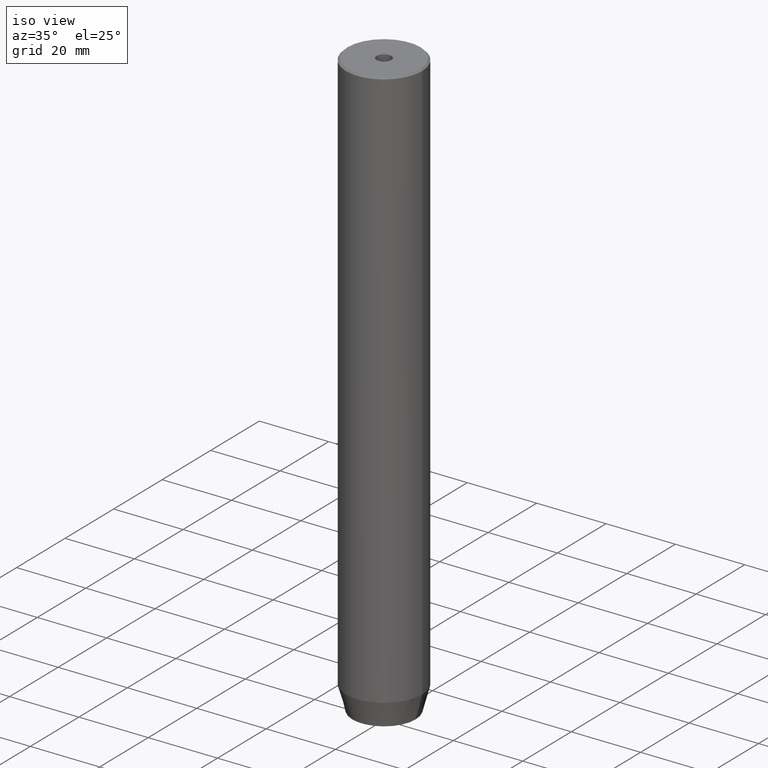
[diagram: clean part render]
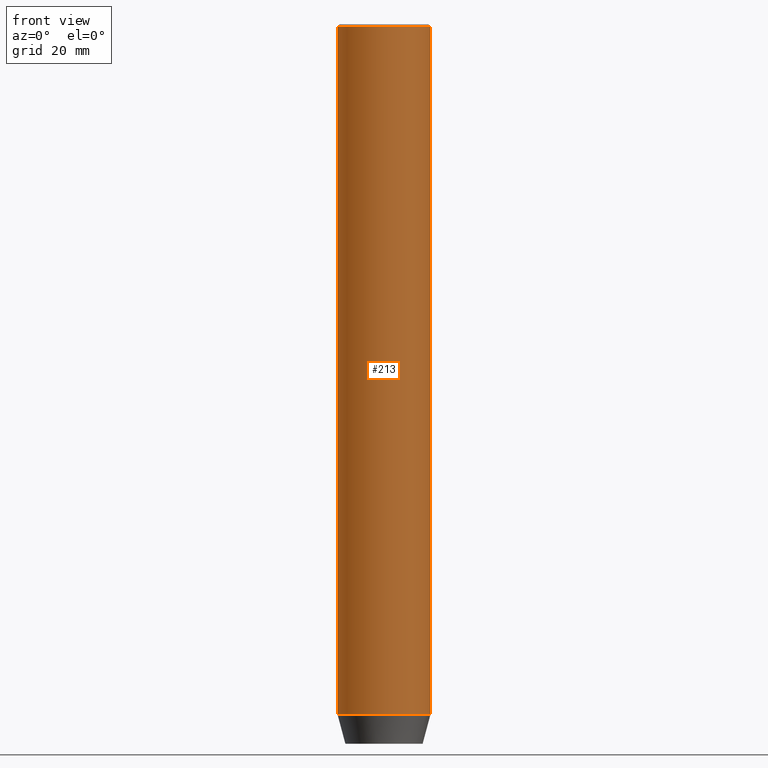
[diagram: tour spotlight — one face highlighted and labeled with its STEP entity id]
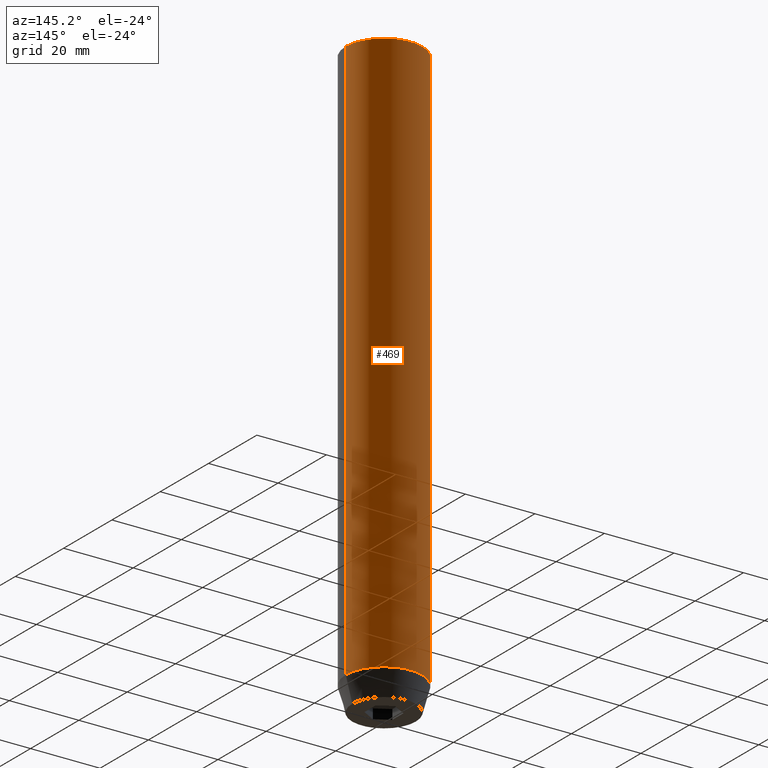
[diagram: tour spotlight — one face highlighted and labeled with its STEP entity id]
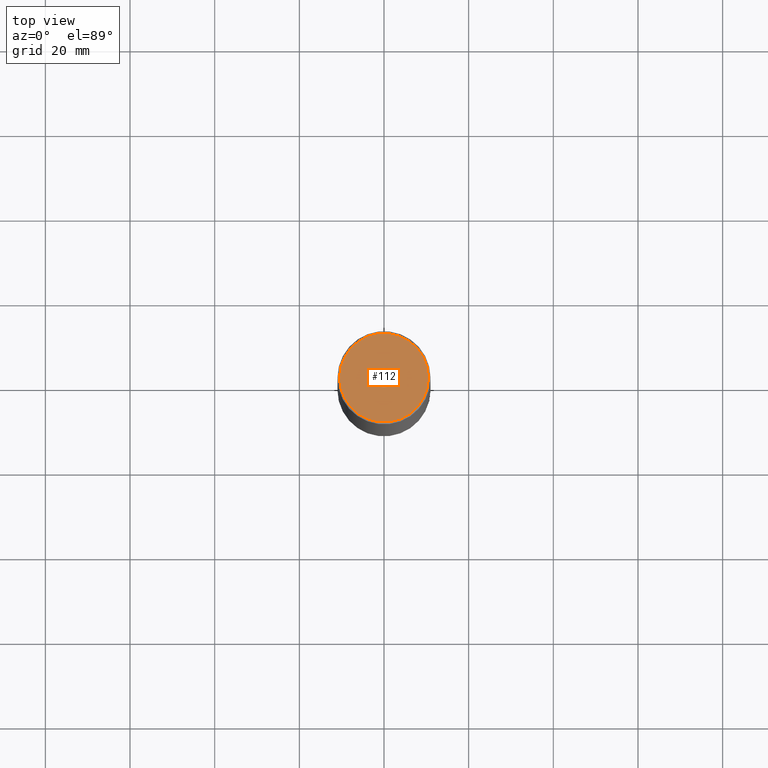
[diagram: tour spotlight — one face highlighted and labeled with its STEP entity id]
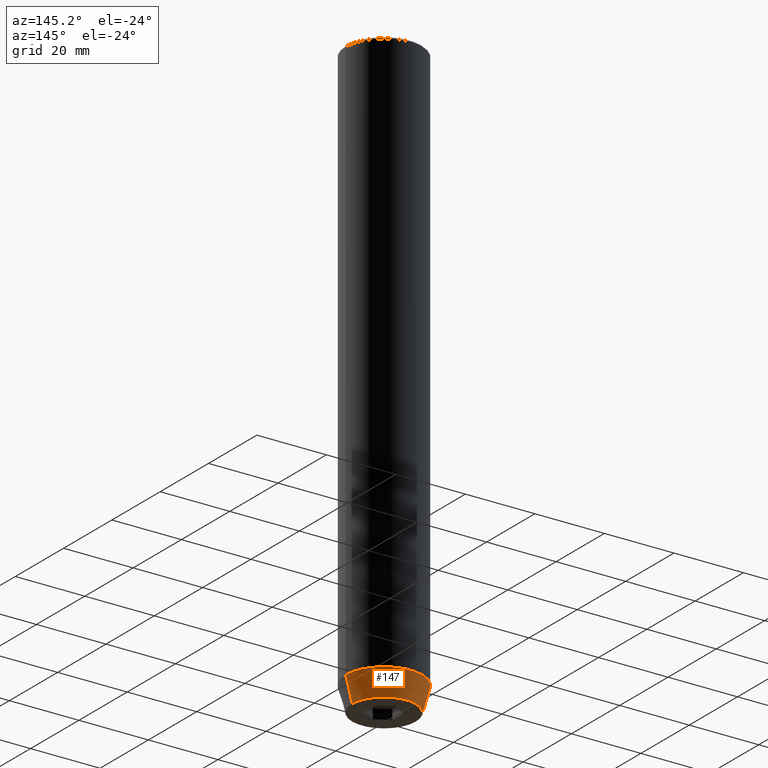
[diagram: tour spotlight — one face highlighted and labeled with its STEP entity id]
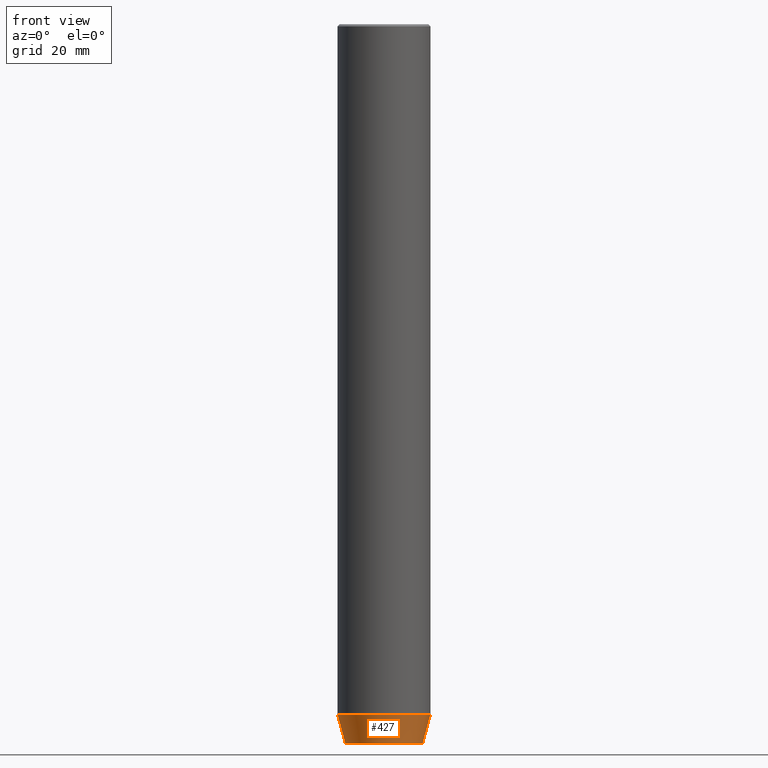
[diagram: tour spotlight — one face highlighted and labeled with its STEP entity id]
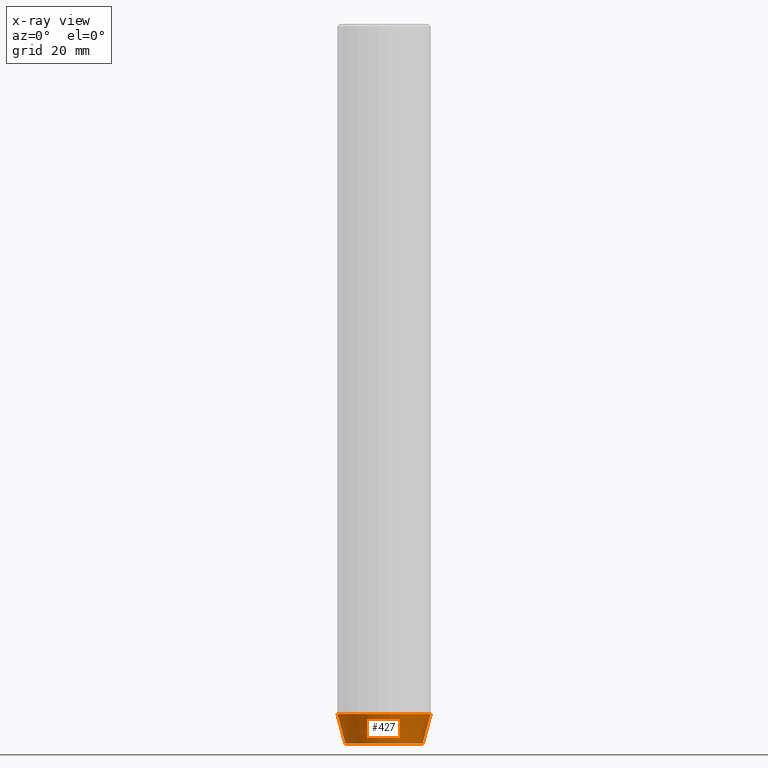
[diagram: x-ray of the same camera — body ghosted, this tour face saturated]
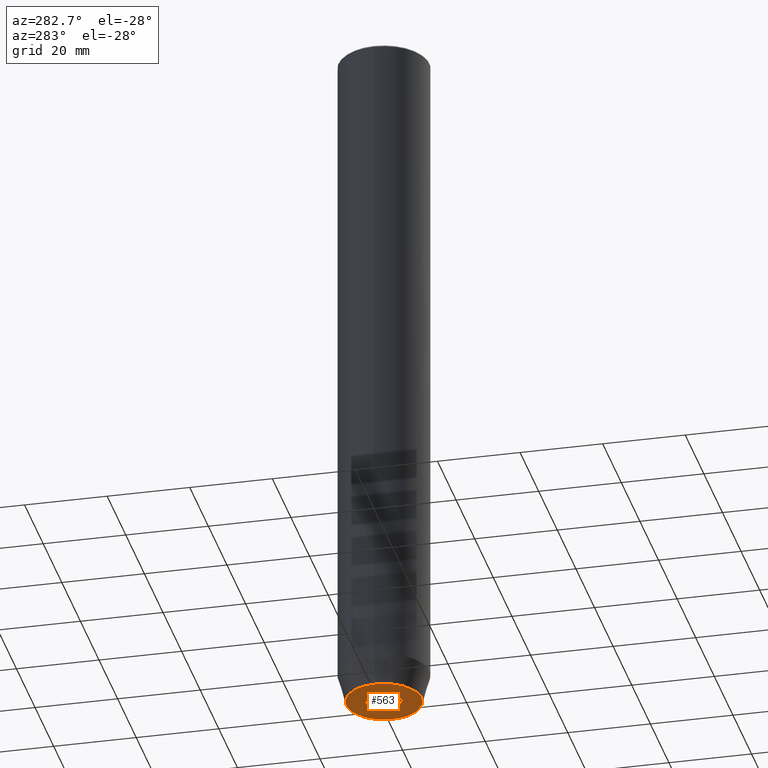
[diagram: tour spotlight — one face highlighted and labeled with its STEP entity id]
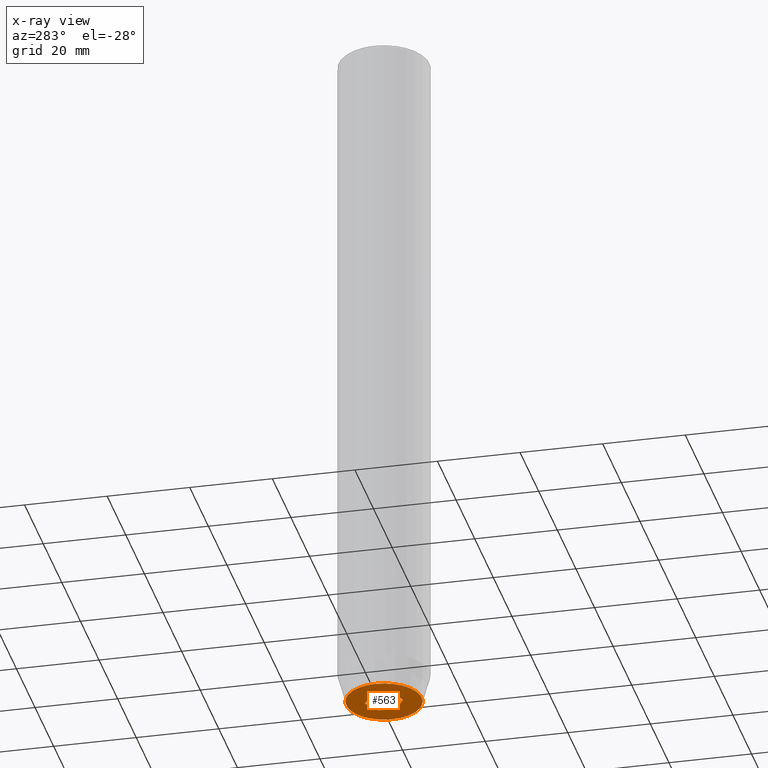
[diagram: x-ray of the same camera — body ghosted, this tour face saturated]
A machine part: a face-by-face anatomy tour. The part has 19 B-rep faces; the first image is the clean iso view, then the 6 largest visible faces are spotlighted one at a time (largest first), each with its STEP entity span.

Face 1 — front view, entity #213. In plain terms, the highlighted cylindrical surface (partial cylindrical patch) has radius 11 mm, axis along (-0, -0, 1).
Definition (entity closure, byte-faithful):
#39 = DIRECTION ( 'NONE',  ( 1.000000000000000000, 0.000000000000000000, 0.000000000000000000 ) ) ;
#41 = VERTEX_POINT ( 'NONE', #247 ) ;
#60 = EDGE_CURVE ( 'NONE', #158, #190, #203, .T. ) ;
#64 = DIRECTION ( 'NONE',  ( -0.000000000000000000, -0.000000000000000000, 1.000000000000000000 ) ) ;
#67 = VECTOR ( 'NONE', #64, 1000.000000000000000 ) ;
#80 = DIRECTION ( 'NONE',  ( -0.000000000000000000, -0.000000000000000000, 1.000000000000000000 ) ) ;
#130 = CARTESIAN_POINT ( 'NONE',  ( 0.000000000000000000, 0.000000000000000000, -0.4999999999999726885 ) ) ;
#150 = CIRCLE ( 'NONE', #202, 11.00000000000000000 ) ;
#153 = ORIENTED_EDGE ( 'NONE', *, *, #529, .F. ) ;
#158 = VERTEX_POINT ( 'NONE', #301 ) ;
#165 = CARTESIAN_POINT ( 'NONE',  ( 11.00000000000000000, 0.000000000000000000, -0.4999999999999726885 ) ) ;
#173 = DIRECTION ( 'NONE',  ( 1.000000000000000000, 0.000000000000000000, 0.000000000000000000 ) ) ;
#182 = CARTESIAN_POINT ( 'NONE',  ( -11.00000000000000000, 1.347111479062088405E-15, 0.000000000000000000 ) ) ;
#189 = CARTESIAN_POINT ( 'NONE',  ( -11.00000000000000000, 1.347111479062088405E-15, -162.9999999999999716 ) ) ;
#190 = VERTEX_POINT ( 'NONE', #165 ) ;
#193 = ORIENTED_EDGE ( 'NONE', *, *, #60, .T. ) ;
#201 = EDGE_CURVE ( 'NONE', #487, #158, #150, .T. ) ;
#202 = AXIS2_PLACEMENT_3D ( 'NONE', #523, #399, #357 ) ;
#203 = LINE ( 'NONE', #388, #67 ) ;
#212 = AXIS2_PLACEMENT_3D ( 'NONE', #130, #496, #39 ) ;
#213 = ADVANCED_FACE ( 'NONE', ( #364 ), #309, .T. ) ;
#247 = CARTESIAN_POINT ( 'NONE',  ( -11.00000000000000000, 1.347111479062088405E-15, -0.4999999999999726885 ) ) ;
#259 = AXIS2_PLACEMENT_3D ( 'NONE', #313, #80, #173 ) ;
#287 = ORIENTED_EDGE ( 'NONE', *, *, #201, .T. ) ;
#301 = CARTESIAN_POINT ( 'NONE',  ( 11.00000000000000000, 0.000000000000000000, -162.9999999999999716 ) ) ;
#309 = CYLINDRICAL_SURFACE ( 'NONE', #259, 11.00000000000000000 ) ;
#313 = CARTESIAN_POINT ( 'NONE',  ( 0.000000000000000000, 0.000000000000000000, 0.000000000000000000 ) ) ;
#342 = EDGE_LOOP ( 'NONE', ( #153, #287, #193, #576 ) ) ;
#348 = VECTOR ( 'NONE', #462, 1000.000000000000000 ) ;
#357 = DIRECTION ( 'NONE',  ( 1.000000000000000000, 0.000000000000000000, 0.000000000000000000 ) ) ;
#364 = FACE_OUTER_BOUND ( 'NONE', #342, .T. ) ;
#388 = CARTESIAN_POINT ( 'NONE',  ( 11.00000000000000000, 0.000000000000000000, 0.000000000000000000 ) ) ;
#399 = DIRECTION ( 'NONE',  ( -0.000000000000000000, -0.000000000000000000, 1.000000000000000000 ) ) ;
#406 = CIRCLE ( 'NONE', #212, 11.00000000000000000 ) ;
#420 = EDGE_CURVE ( 'NONE', #190, #41, #406, .T. ) ;
#462 = DIRECTION ( 'NONE',  ( -0.000000000000000000, -0.000000000000000000, 1.000000000000000000 ) ) ;
#487 = VERTEX_POINT ( 'NONE', #189 ) ;
#496 = DIRECTION ( 'NONE',  ( 0.000000000000000000, 0.000000000000000000, -1.000000000000000000 ) ) ;
#509 = LINE ( 'NONE', #182, #348 ) ;
#523 = CARTESIAN_POINT ( 'NONE',  ( 0.000000000000000000, 0.000000000000000000, -162.9999999999999716 ) ) ;
#529 = EDGE_CURVE ( 'NONE', #487, #41, #509, .T. ) ;
#576 = ORIENTED_EDGE ( 'NONE', *, *, #420, .T. ) ;

Face 2 — auxiliary view, entity #469. In plain terms, the highlighted cylindrical surface (partial cylindrical patch) has radius 11 mm, axis along (-0, -0, 1).
Definition (entity closure, byte-faithful):
#6 = CIRCLE ( 'NONE', #297, 11.00000000000000000 ) ;
#8 = DIRECTION ( 'NONE',  ( -0.000000000000000000, -0.000000000000000000, 1.000000000000000000 ) ) ;
#34 = ORIENTED_EDGE ( 'NONE', *, *, #409, .T. ) ;
#37 = ORIENTED_EDGE ( 'NONE', *, *, #60, .F. ) ;
#41 = VERTEX_POINT ( 'NONE', #247 ) ;
#60 = EDGE_CURVE ( 'NONE', #158, #190, #203, .T. ) ;
#62 = EDGE_LOOP ( 'NONE', ( #34, #432, #475, #37 ) ) ;
#64 = DIRECTION ( 'NONE',  ( -0.000000000000000000, -0.000000000000000000, 1.000000000000000000 ) ) ;
#67 = VECTOR ( 'NONE', #64, 1000.000000000000000 ) ;
#82 = DIRECTION ( 'NONE',  ( 1.000000000000000000, 0.000000000000000000, 0.000000000000000000 ) ) ;
#119 = DIRECTION ( 'NONE',  ( 1.000000000000000000, 0.000000000000000000, 0.000000000000000000 ) ) ;
#158 = VERTEX_POINT ( 'NONE', #301 ) ;
#165 = CARTESIAN_POINT ( 'NONE',  ( 11.00000000000000000, 0.000000000000000000, -0.4999999999999726885 ) ) ;
#170 = DIRECTION ( 'NONE',  ( 0.000000000000000000, 0.000000000000000000, -1.000000000000000000 ) ) ;
#182 = CARTESIAN_POINT ( 'NONE',  ( -11.00000000000000000, 1.347111479062088405E-15, 0.000000000000000000 ) ) ;
#189 = CARTESIAN_POINT ( 'NONE',  ( -11.00000000000000000, 1.347111479062088405E-15, -162.9999999999999716 ) ) ;
#190 = VERTEX_POINT ( 'NONE', #165 ) ;
#203 = LINE ( 'NONE', #388, #67 ) ;
#219 = CARTESIAN_POINT ( 'NONE',  ( 0.000000000000000000, 0.000000000000000000, -162.9999999999999716 ) ) ;
#234 = CYLINDRICAL_SURFACE ( 'NONE', #481, 11.00000000000000000 ) ;
#244 = CARTESIAN_POINT ( 'NONE',  ( 0.000000000000000000, 0.000000000000000000, -0.4999999999999726885 ) ) ;
#247 = CARTESIAN_POINT ( 'NONE',  ( -11.00000000000000000, 1.347111479062088405E-15, -0.4999999999999726885 ) ) ;
#255 = EDGE_CURVE ( 'NONE', #41, #190, #466, .T. ) ;
#297 = AXIS2_PLACEMENT_3D ( 'NONE', #219, #344, #119 ) ;
#301 = CARTESIAN_POINT ( 'NONE',  ( 11.00000000000000000, 0.000000000000000000, -162.9999999999999716 ) ) ;
#305 = AXIS2_PLACEMENT_3D ( 'NONE', #244, #170, #82 ) ;
#344 = DIRECTION ( 'NONE',  ( -0.000000000000000000, -0.000000000000000000, 1.000000000000000000 ) ) ;
#348 = VECTOR ( 'NONE', #462, 1000.000000000000000 ) ;
#361 = FACE_OUTER_BOUND ( 'NONE', #62, .T. ) ;
#388 = CARTESIAN_POINT ( 'NONE',  ( 11.00000000000000000, 0.000000000000000000, 0.000000000000000000 ) ) ;
#409 = EDGE_CURVE ( 'NONE', #158, #487, #6, .T. ) ;
#432 = ORIENTED_EDGE ( 'NONE', *, *, #529, .T. ) ;
#462 = DIRECTION ( 'NONE',  ( -0.000000000000000000, -0.000000000000000000, 1.000000000000000000 ) ) ;
#466 = CIRCLE ( 'NONE', #305, 11.00000000000000000 ) ;
#469 = ADVANCED_FACE ( 'NONE', ( #361 ), #234, .T. ) ;
#475 = ORIENTED_EDGE ( 'NONE', *, *, #255, .T. ) ;
#481 = AXIS2_PLACEMENT_3D ( 'NONE', #585, #8, #548 ) ;
#487 = VERTEX_POINT ( 'NONE', #189 ) ;
#509 = LINE ( 'NONE', #182, #348 ) ;
#529 = EDGE_CURVE ( 'NONE', #487, #41, #509, .T. ) ;
#548 = DIRECTION ( 'NONE',  ( 1.000000000000000000, 0.000000000000000000, 0.000000000000000000 ) ) ;
#585 = CARTESIAN_POINT ( 'NONE',  ( 0.000000000000000000, 0.000000000000000000, 0.000000000000000000 ) ) ;

Face 3 — top view, entity #112. In plain terms, the highlighted planar face has unit normal (0, -0, 1).
Definition (entity closure, byte-faithful):
#30 = CARTESIAN_POINT ( 'NONE',  ( 2.099999999999998757, 0.000000000000000000, -1.990051048614449116E-16 ) ) ;
#51 = CIRCLE ( 'NONE', #192, 2.099999999999998757 ) ;
#57 = CARTESIAN_POINT ( 'NONE',  ( 0.000000000000000000, 0.000000000000000000, 0.000000000000000000 ) ) ;
#93 = VERTEX_POINT ( 'NONE', #159 ) ;
#103 = DIRECTION ( 'NONE',  ( 0.000000000000000000, -0.000000000000000000, 1.000000000000000000 ) ) ;
#105 = CIRCLE ( 'NONE', #447, 2.099999999999998757 ) ;
#109 = DIRECTION ( 'NONE',  ( -0.000000000000000000, -0.000000000000000000, 1.000000000000000000 ) ) ;
#112 = ADVANCED_FACE ( 'NONE', ( #302, #477 ), #518, .T. ) ;
#123 = CARTESIAN_POINT ( 'NONE',  ( 10.50000000000005151, 1.316495309083407773E-15, 0.000000000000000000 ) ) ;
#139 = DIRECTION ( 'NONE',  ( -0.000000000000000000, -0.000000000000000000, 1.000000000000000000 ) ) ;
#141 = CIRCLE ( 'NONE', #536, 10.50000000000005151 ) ;
#146 = CARTESIAN_POINT ( 'NONE',  ( -10.50000000000005151, 0.000000000000000000, 0.000000000000000000 ) ) ;
#149 = DIRECTION ( 'NONE',  ( 1.000000000000000000, 0.000000000000000000, 0.000000000000000000 ) ) ;
#152 = CIRCLE ( 'NONE', #227, 10.50000000000005151 ) ;
#159 = CARTESIAN_POINT ( 'NONE',  ( -2.099999999999998757, 2.571758278209440478E-16, -1.990051048614449116E-16 ) ) ;
#167 = CARTESIAN_POINT ( 'NONE',  ( 0.000000000000000000, 0.000000000000000000, -1.990051048614449116E-16 ) ) ;
#172 = DIRECTION ( 'NONE',  ( 1.000000000000000000, 0.000000000000000000, 0.000000000000000000 ) ) ;
#176 = EDGE_LOOP ( 'NONE', ( #393, #350 ) ) ;
#192 = AXIS2_PLACEMENT_3D ( 'NONE', #336, #109, #263 ) ;
#195 = EDGE_CURVE ( 'NONE', #93, #577, #51, .T. ) ;
#215 = DIRECTION ( 'NONE',  ( -0.000000000000000000, -0.000000000000000000, 1.000000000000000000 ) ) ;
#224 = VERTEX_POINT ( 'NONE', #123 ) ;
#227 = AXIS2_PLACEMENT_3D ( 'NONE', #369, #452, #324 ) ;
#233 = VERTEX_POINT ( 'NONE', #146 ) ;
#239 = ORIENTED_EDGE ( 'NONE', *, *, #195, .F. ) ;
#263 = DIRECTION ( 'NONE',  ( 1.000000000000000000, 0.000000000000000000, 0.000000000000000000 ) ) ;
#273 = EDGE_CURVE ( 'NONE', #577, #93, #105, .T. ) ;
#302 = FACE_BOUND ( 'NONE', #492, .T. ) ;
#324 = DIRECTION ( 'NONE',  ( 1.000000000000000000, 0.000000000000000000, 0.000000000000000000 ) ) ;
#336 = CARTESIAN_POINT ( 'NONE',  ( 0.000000000000000000, 0.000000000000000000, -1.990051048614449116E-16 ) ) ;
#350 = ORIENTED_EDGE ( 'NONE', *, *, #557, .T. ) ;
#369 = CARTESIAN_POINT ( 'NONE',  ( 0.000000000000000000, 0.000000000000000000, 0.000000000000000000 ) ) ;
#381 = DIRECTION ( 'NONE',  ( 1.000000000000000000, 0.000000000000000000, 0.000000000000000000 ) ) ;
#393 = ORIENTED_EDGE ( 'NONE', *, *, #519, .T. ) ;
#421 = CARTESIAN_POINT ( 'NONE',  ( 0.000000000000000000, 0.000000000000000000, 0.000000000000000000 ) ) ;
#447 = AXIS2_PLACEMENT_3D ( 'NONE', #167, #215, #172 ) ;
#452 = DIRECTION ( 'NONE',  ( -0.000000000000000000, -0.000000000000000000, 1.000000000000000000 ) ) ;
#477 = FACE_OUTER_BOUND ( 'NONE', #176, .T. ) ;
#492 = EDGE_LOOP ( 'NONE', ( #505, #239 ) ) ;
#505 = ORIENTED_EDGE ( 'NONE', *, *, #273, .F. ) ;
#517 = AXIS2_PLACEMENT_3D ( 'NONE', #57, #103, #381 ) ;
#518 = PLANE ( 'NONE',  #517 ) ;
#519 = EDGE_CURVE ( 'NONE', #233, #224, #152, .T. ) ;
#536 = AXIS2_PLACEMENT_3D ( 'NONE', #421, #139, #149 ) ;
#557 = EDGE_CURVE ( 'NONE', #224, #233, #141, .T. ) ;
#577 = VERTEX_POINT ( 'NONE', #30 ) ;

Face 4 — auxiliary view, entity #147. In plain terms, the highlighted conical surface has half-angle 15 deg.
Definition (entity closure, byte-faithful):
#6 = CIRCLE ( 'NONE', #297, 11.00000000000000000 ) ;
#52 = EDGE_CURVE ( 'NONE', #410, #487, #332, .T. ) ;
#73 = CARTESIAN_POINT ( 'NONE',  ( -9.124355652982126585, 1.232261386766375113E-15, -170.0000000000000000 ) ) ;
#99 = ORIENTED_EDGE ( 'NONE', *, *, #320, .F. ) ;
#116 = CARTESIAN_POINT ( 'NONE',  ( 11.00000000000000000, 0.000000000000000000, -162.9999999999999716 ) ) ;
#119 = DIRECTION ( 'NONE',  ( 1.000000000000000000, 0.000000000000000000, 0.000000000000000000 ) ) ;
#147 = ADVANCED_FACE ( 'NONE', ( #257 ), #574, .T. ) ;
#158 = VERTEX_POINT ( 'NONE', #301 ) ;
#189 = CARTESIAN_POINT ( 'NONE',  ( -11.00000000000000000, 1.347111479062088405E-15, -162.9999999999999716 ) ) ;
#219 = CARTESIAN_POINT ( 'NONE',  ( 0.000000000000000000, 0.000000000000000000, -162.9999999999999716 ) ) ;
#256 = CARTESIAN_POINT ( 'NONE',  ( 0.000000000000000000, 0.000000000000000000, -170.0000000000000000 ) ) ;
#257 = FACE_OUTER_BOUND ( 'NONE', #545, .T. ) ;
#261 = CARTESIAN_POINT ( 'NONE',  ( 9.124355652982126585, 0.000000000000000000, -170.0000000000000000 ) ) ;
#272 = AXIS2_PLACEMENT_3D ( 'NONE', #474, #386, #339 ) ;
#274 = ORIENTED_EDGE ( 'NONE', *, *, #409, .F. ) ;
#297 = AXIS2_PLACEMENT_3D ( 'NONE', #219, #344, #119 ) ;
#301 = CARTESIAN_POINT ( 'NONE',  ( 11.00000000000000000, 0.000000000000000000, -162.9999999999999716 ) ) ;
#312 = VERTEX_POINT ( 'NONE', #261 ) ;
#320 = EDGE_CURVE ( 'NONE', #312, #158, #533, .T. ) ;
#332 = LINE ( 'NONE', #423, #395 ) ;
#339 = DIRECTION ( 'NONE',  ( 1.000000000000000000, 0.000000000000000000, 0.000000000000000000 ) ) ;
#344 = DIRECTION ( 'NONE',  ( -0.000000000000000000, -0.000000000000000000, 1.000000000000000000 ) ) ;
#345 = EDGE_CURVE ( 'NONE', #312, #410, #435, .T. ) ;
#367 = ORIENTED_EDGE ( 'NONE', *, *, #52, .T. ) ;
#386 = DIRECTION ( 'NONE',  ( -0.000000000000000000, -0.000000000000000000, 1.000000000000000000 ) ) ;
#395 = VECTOR ( 'NONE', #572, 1000.000000000000114 ) ;
#404 = AXIS2_PLACEMENT_3D ( 'NONE', #256, #484, #440 ) ;
#409 = EDGE_CURVE ( 'NONE', #158, #487, #6, .T. ) ;
#410 = VERTEX_POINT ( 'NONE', #73 ) ;
#423 = CARTESIAN_POINT ( 'NONE',  ( -11.00000000000000000, 1.347111479062088405E-15, -162.9999999999999716 ) ) ;
#425 = VECTOR ( 'NONE', #442, 1000.000000000000114 ) ;
#435 = CIRCLE ( 'NONE', #404, 9.124355652982126585 ) ;
#440 = DIRECTION ( 'NONE',  ( 1.000000000000000000, 0.000000000000000000, 0.000000000000000000 ) ) ;
#442 = DIRECTION ( 'NONE',  ( 0.2588190451025212391, 0.000000000000000000, 0.9659258262890680902 ) ) ;
#459 = ORIENTED_EDGE ( 'NONE', *, *, #345, .T. ) ;
#474 = CARTESIAN_POINT ( 'NONE',  ( 0.000000000000000000, 0.000000000000000000, -162.9999999999999716 ) ) ;
#484 = DIRECTION ( 'NONE',  ( -0.000000000000000000, -0.000000000000000000, 1.000000000000000000 ) ) ;
#487 = VERTEX_POINT ( 'NONE', #189 ) ;
#533 = LINE ( 'NONE', #116, #425 ) ;
#545 = EDGE_LOOP ( 'NONE', ( #459, #367, #274, #99 ) ) ;
#572 = DIRECTION ( 'NONE',  ( -0.2588190451025212391, 3.169619151431771721E-17, 0.9659258262890680902 ) ) ;
#574 = CONICAL_SURFACE ( 'NONE', #272, 11.00000000000000000, 0.2617993877991499629 ) ;

Face 5 — front view, entity #427. An x-ray twin of the same camera follows (body ghosted, this face saturated) — the face is partly hidden behind the body. In plain terms, the highlighted conical surface has half-angle 15 deg.
Definition (entity closure, byte-faithful):
#26 = EDGE_CURVE ( 'NONE', #410, #312, #69, .T. ) ;
#52 = EDGE_CURVE ( 'NONE', #410, #487, #332, .T. ) ;
#69 = CIRCLE ( 'NONE', #443, 9.124355652982126585 ) ;
#73 = CARTESIAN_POINT ( 'NONE',  ( -9.124355652982126585, 1.232261386766375113E-15, -170.0000000000000000 ) ) ;
#76 = CONICAL_SURFACE ( 'NONE', #371, 11.00000000000000000, 0.2617993877991499629 ) ;
#79 = DIRECTION ( 'NONE',  ( 1.000000000000000000, 0.000000000000000000, 0.000000000000000000 ) ) ;
#106 = ORIENTED_EDGE ( 'NONE', *, *, #52, .F. ) ;
#113 = EDGE_LOOP ( 'NONE', ( #106, #323, #315, #283 ) ) ;
#116 = CARTESIAN_POINT ( 'NONE',  ( 11.00000000000000000, 0.000000000000000000, -162.9999999999999716 ) ) ;
#124 = CARTESIAN_POINT ( 'NONE',  ( 0.000000000000000000, 0.000000000000000000, -162.9999999999999716 ) ) ;
#150 = CIRCLE ( 'NONE', #202, 11.00000000000000000 ) ;
#154 = DIRECTION ( 'NONE',  ( 1.000000000000000000, 0.000000000000000000, 0.000000000000000000 ) ) ;
#156 = DIRECTION ( 'NONE',  ( -0.000000000000000000, -0.000000000000000000, 1.000000000000000000 ) ) ;
#158 = VERTEX_POINT ( 'NONE', #301 ) ;
#189 = CARTESIAN_POINT ( 'NONE',  ( -11.00000000000000000, 1.347111479062088405E-15, -162.9999999999999716 ) ) ;
#201 = EDGE_CURVE ( 'NONE', #487, #158, #150, .T. ) ;
#202 = AXIS2_PLACEMENT_3D ( 'NONE', #523, #399, #357 ) ;
#261 = CARTESIAN_POINT ( 'NONE',  ( 9.124355652982126585, 0.000000000000000000, -170.0000000000000000 ) ) ;
#283 = ORIENTED_EDGE ( 'NONE', *, *, #201, .F. ) ;
#301 = CARTESIAN_POINT ( 'NONE',  ( 11.00000000000000000, 0.000000000000000000, -162.9999999999999716 ) ) ;
#312 = VERTEX_POINT ( 'NONE', #261 ) ;
#315 = ORIENTED_EDGE ( 'NONE', *, *, #320, .T. ) ;
#320 = EDGE_CURVE ( 'NONE', #312, #158, #533, .T. ) ;
#323 = ORIENTED_EDGE ( 'NONE', *, *, #26, .T. ) ;
#332 = LINE ( 'NONE', #423, #395 ) ;
#357 = DIRECTION ( 'NONE',  ( 1.000000000000000000, 0.000000000000000000, 0.000000000000000000 ) ) ;
#371 = AXIS2_PLACEMENT_3D ( 'NONE', #124, #583, #79 ) ;
#395 = VECTOR ( 'NONE', #572, 1000.000000000000114 ) ;
#399 = DIRECTION ( 'NONE',  ( -0.000000000000000000, -0.000000000000000000, 1.000000000000000000 ) ) ;
#410 = VERTEX_POINT ( 'NONE', #73 ) ;
#423 = CARTESIAN_POINT ( 'NONE',  ( -11.00000000000000000, 1.347111479062088405E-15, -162.9999999999999716 ) ) ;
#425 = VECTOR ( 'NONE', #442, 1000.000000000000114 ) ;
#427 = ADVANCED_FACE ( 'NONE', ( #506 ), #76, .T. ) ;
#442 = DIRECTION ( 'NONE',  ( 0.2588190451025212391, 0.000000000000000000, 0.9659258262890680902 ) ) ;
#443 = AXIS2_PLACEMENT_3D ( 'NONE', #575, #156, #154 ) ;
#487 = VERTEX_POINT ( 'NONE', #189 ) ;
#506 = FACE_OUTER_BOUND ( 'NONE', #113, .T. ) ;
#523 = CARTESIAN_POINT ( 'NONE',  ( 0.000000000000000000, 0.000000000000000000, -162.9999999999999716 ) ) ;
#533 = LINE ( 'NONE', #116, #425 ) ;
#572 = DIRECTION ( 'NONE',  ( -0.2588190451025212391, 3.169619151431771721E-17, 0.9659258262890680902 ) ) ;
#575 = CARTESIAN_POINT ( 'NONE',  ( 0.000000000000000000, 0.000000000000000000, -170.0000000000000000 ) ) ;
#583 = DIRECTION ( 'NONE',  ( -0.000000000000000000, -0.000000000000000000, 1.000000000000000000 ) ) ;

Face 6 — auxiliary view, entity #563. An x-ray twin of the same camera follows (body ghosted, this face saturated) — the face is partly hidden behind the body. In plain terms, the highlighted planar face has unit normal (0, 0, -1).
Definition (entity closure, byte-faithful):
#4 = EDGE_CURVE ( 'NONE', #456, #358, #508, .T. ) ;
#16 = CARTESIAN_POINT ( 'NONE',  ( 2.168404344971008868E-16, 4.618802153517006737, -170.0000000000000000 ) ) ;
#22 = VECTOR ( 'NONE', #236, 1000.000000000000000 ) ;
#26 = EDGE_CURVE ( 'NONE', #410, #312, #69, .T. ) ;
#45 = EDGE_CURVE ( 'NONE', #277, #207, #162, .T. ) ;
#46 = CARTESIAN_POINT ( 'NONE',  ( 4.336808689942017736E-16, -4.618802153517006737, -170.0000000000000000 ) ) ;
#53 = CARTESIAN_POINT ( 'NONE',  ( 0.000000000000000000, 9.124355652982126585, -170.0000000000000000 ) ) ;
#63 = DIRECTION ( 'NONE',  ( 0.000000000000000000, 0.000000000000000000, -1.000000000000000000 ) ) ;
#69 = CIRCLE ( 'NONE', #443, 9.124355652982126585 ) ;
#73 = CARTESIAN_POINT ( 'NONE',  ( -9.124355652982126585, 1.232261386766375113E-15, -170.0000000000000000 ) ) ;
#81 = VERTEX_POINT ( 'NONE', #16 ) ;
#86 = CARTESIAN_POINT ( 'NONE',  ( -2.000000000000000000, 3.464101615137754830, -170.0000000000000000 ) ) ;
#89 = DIRECTION ( 'NONE',  ( 0.8660254037844387076, 0.5000000000000001110, 0.000000000000000000 ) ) ;
#94 = DIRECTION ( 'NONE',  ( -0.8660254037844384856, 0.5000000000000002220, 0.000000000000000000 ) ) ;
#115 = VECTOR ( 'NONE', #230, 1000.000000000000000 ) ;
#127 = CARTESIAN_POINT ( 'NONE',  ( -4.000000000000000000, -2.309401076758503368, -170.0000000000000000 ) ) ;
#136 = PLANE ( 'NONE',  #426 ) ;
#142 = CARTESIAN_POINT ( 'NONE',  ( 4.000000000000000000, 2.309401076758503368, -170.0000000000000000 ) ) ;
#154 = DIRECTION ( 'NONE',  ( 1.000000000000000000, 0.000000000000000000, 0.000000000000000000 ) ) ;
#156 = DIRECTION ( 'NONE',  ( -0.000000000000000000, -0.000000000000000000, 1.000000000000000000 ) ) ;
#162 = LINE ( 'NONE', #564, #271 ) ;
#163 = ORIENTED_EDGE ( 'NONE', *, *, #4, .F. ) ;
#169 = DIRECTION ( 'NONE',  ( -0.8660254037844384856, -0.5000000000000002220, 0.000000000000000000 ) ) ;
#180 = VECTOR ( 'NONE', #89, 999.9999999999998863 ) ;
#207 = VERTEX_POINT ( 'NONE', #275 ) ;
#217 = LINE ( 'NONE', #394, #552 ) ;
#220 = EDGE_CURVE ( 'NONE', #81, #456, #270, .T. ) ;
#226 = LINE ( 'NONE', #514, #331 ) ;
#230 = DIRECTION ( 'NONE',  ( 0.8660254037844385966, -0.5000000000000001110, 0.000000000000000000 ) ) ;
#236 = DIRECTION ( 'NONE',  ( 0.000000000000000000, -1.000000000000000000, 0.000000000000000000 ) ) ;
#237 = EDGE_CURVE ( 'NONE', #439, #277, #226, .T. ) ;
#253 = DIRECTION ( 'NONE',  ( -1.000000000000000000, 0.000000000000000000, -0.000000000000000000 ) ) ;
#256 = CARTESIAN_POINT ( 'NONE',  ( 0.000000000000000000, 0.000000000000000000, -170.0000000000000000 ) ) ;
#261 = CARTESIAN_POINT ( 'NONE',  ( 9.124355652982126585, 0.000000000000000000, -170.0000000000000000 ) ) ;
#270 = LINE ( 'NONE', #541, #115 ) ;
#271 = VECTOR ( 'NONE', #521, 1000.000000000000000 ) ;
#275 = CARTESIAN_POINT ( 'NONE',  ( -4.000000000000000000, 2.309401076758503368, -170.0000000000000000 ) ) ;
#277 = VERTEX_POINT ( 'NONE', #127 ) ;
#285 = CARTESIAN_POINT ( 'NONE',  ( 4.000000000000000000, 0.000000000000000000, -170.0000000000000000 ) ) ;
#312 = VERTEX_POINT ( 'NONE', #261 ) ;
#316 = EDGE_LOOP ( 'NONE', ( #495, #326 ) ) ;
#319 = ORIENTED_EDGE ( 'NONE', *, *, #494, .F. ) ;
#326 = ORIENTED_EDGE ( 'NONE', *, *, #26, .F. ) ;
#330 = FACE_BOUND ( 'NONE', #370, .T. ) ;
#331 = VECTOR ( 'NONE', #94, 1000.000000000000114 ) ;
#345 = EDGE_CURVE ( 'NONE', #312, #410, #435, .T. ) ;
#356 = EDGE_CURVE ( 'NONE', #358, #439, #217, .T. ) ;
#358 = VERTEX_POINT ( 'NONE', #368 ) ;
#368 = CARTESIAN_POINT ( 'NONE',  ( 4.000000000000000000, -2.309401076758502480, -170.0000000000000000 ) ) ;
#370 = EDGE_LOOP ( 'NONE', ( #319, #526, #559, #476, #163, #568 ) ) ;
#394 = CARTESIAN_POINT ( 'NONE',  ( 2.000000000000000888, -3.464101615137754386, -170.0000000000000000 ) ) ;
#404 = AXIS2_PLACEMENT_3D ( 'NONE', #256, #484, #440 ) ;
#410 = VERTEX_POINT ( 'NONE', #73 ) ;
#426 = AXIS2_PLACEMENT_3D ( 'NONE', #53, #63, #253 ) ;
#435 = CIRCLE ( 'NONE', #404, 9.124355652982126585 ) ;
#439 = VERTEX_POINT ( 'NONE', #46 ) ;
#440 = DIRECTION ( 'NONE',  ( 1.000000000000000000, 0.000000000000000000, 0.000000000000000000 ) ) ;
#443 = AXIS2_PLACEMENT_3D ( 'NONE', #575, #156, #154 ) ;
#456 = VERTEX_POINT ( 'NONE', #142 ) ;
#476 = ORIENTED_EDGE ( 'NONE', *, *, #356, .F. ) ;
#484 = DIRECTION ( 'NONE',  ( -0.000000000000000000, -0.000000000000000000, 1.000000000000000000 ) ) ;
#494 = EDGE_CURVE ( 'NONE', #207, #81, #504, .T. ) ;
#495 = ORIENTED_EDGE ( 'NONE', *, *, #345, .F. ) ;
#504 = LINE ( 'NONE', #86, #180 ) ;
#508 = LINE ( 'NONE', #285, #22 ) ;
#514 = CARTESIAN_POINT ( 'NONE',  ( -2.000000000000000888, -3.464101615137754386, -170.0000000000000000 ) ) ;
#516 = FACE_OUTER_BOUND ( 'NONE', #316, .T. ) ;
#521 = DIRECTION ( 'NONE',  ( 0.000000000000000000, 1.000000000000000000, 0.000000000000000000 ) ) ;
#526 = ORIENTED_EDGE ( 'NONE', *, *, #45, .F. ) ;
#541 = CARTESIAN_POINT ( 'NONE',  ( 2.000000000000000444, 3.464101615137754386, -170.0000000000000000 ) ) ;
#552 = VECTOR ( 'NONE', #169, 1000.000000000000114 ) ;
#559 = ORIENTED_EDGE ( 'NONE', *, *, #237, .F. ) ;
#563 = ADVANCED_FACE ( 'NONE', ( #330, #516 ), #136, .T. ) ;
#564 = CARTESIAN_POINT ( 'NONE',  ( -4.000000000000000000, 0.000000000000000000, -170.0000000000000000 ) ) ;
#568 = ORIENTED_EDGE ( 'NONE', *, *, #220, .F. ) ;
#575 = CARTESIAN_POINT ( 'NONE',  ( 0.000000000000000000, 0.000000000000000000, -170.0000000000000000 ) ) ;